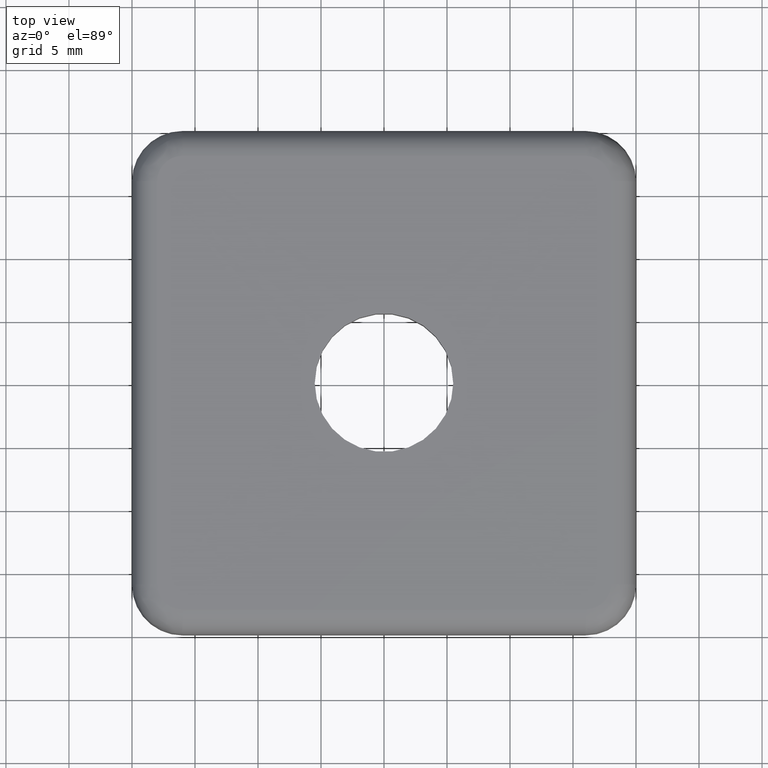
[diagram: clean part render]
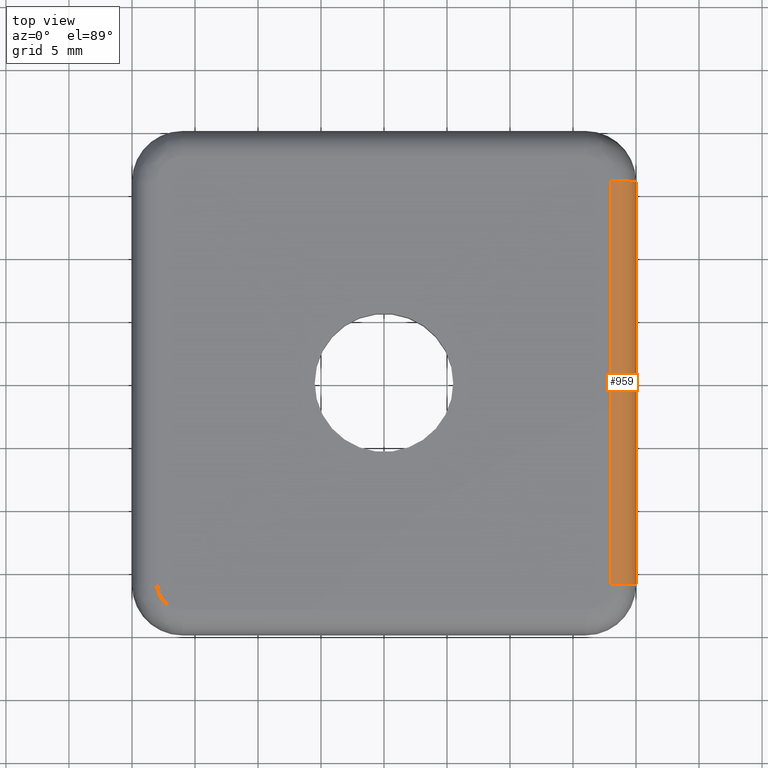
[diagram: same view with one face highlighted and labeled with its STEP entity id]
A machine part, top view. The second image highlights one B-rep face of the part: STEP entity #959.
In plain terms, the highlighted cylindrical surface (edge-blend (fillet) strip) has radius 2 mm, axis along (-0, 1, 0).
Its self-contained STEP definition (entity closure, byte-faithful):
#117=FACE_OUTER_BOUND('',#194,.T.);
#194=EDGE_LOOP('',(#834,#835,#836,#837));
#265=LINE('',#1705,#335);
#266=LINE('',#1706,#336);
#335=VECTOR('',#1387,32.);
#336=VECTOR('',#1388,32.);
#389=CIRCLE('',#1078,2.);
#402=CIRCLE('',#1094,2.);
#473=VERTEX_POINT('',#1636);
#474=VERTEX_POINT('',#1637);
#487=VERTEX_POINT('',#1699);
#488=VERTEX_POINT('',#1700);
#587=EDGE_CURVE('',#473,#474,#389,.T.);
#606=EDGE_CURVE('',#487,#488,#402,.T.);
#609=EDGE_CURVE('',#487,#474,#265,.T.);
#610=EDGE_CURVE('',#473,#488,#266,.T.);
#834=ORIENTED_EDGE('',*,*,#606,.F.);
#835=ORIENTED_EDGE('',*,*,#609,.T.);
#836=ORIENTED_EDGE('',*,*,#587,.F.);
#837=ORIENTED_EDGE('',*,*,#610,.T.);
#902=CYLINDRICAL_SURFACE('',#1097,2.);
#959=ADVANCED_FACE('',(#117),#902,.T.);
#1078=AXIS2_PLACEMENT_3D('',#1638,#1341,#1342);
#1094=AXIS2_PLACEMENT_3D('',#1701,#1379,#1380);
#1097=AXIS2_PLACEMENT_3D('',#1704,#1385,#1386);
#1341=DIRECTION('center_axis',(0.,-1.,0.));
#1342=DIRECTION('ref_axis',(1.,0.,0.));
#1379=DIRECTION('center_axis',(0.,1.,0.));
#1380=DIRECTION('ref_axis',(0.,0.,1.));
#1385=DIRECTION('center_axis',(-5.55111512312578E-17,1.,0.));
#1386=DIRECTION('ref_axis',(0.707106781186548,3.92523114670944E-17,0.707106781186547));
#1387=DIRECTION('',(5.55111512312578E-17,-1.,0.));
#1388=DIRECTION('',(-5.55111512312578E-17,1.,0.));
#1636=CARTESIAN_POINT('',(20.,-16.,2.));
#1637=CARTESIAN_POINT('',(18.,-16.,4.));
#1638=CARTESIAN_POINT('Origin',(18.,-16.,2.));
#1699=CARTESIAN_POINT('',(18.,16.,4.));
#1700=CARTESIAN_POINT('',(20.,16.,2.));
#1701=CARTESIAN_POINT('Origin',(18.,16.,2.));
#1704=CARTESIAN_POINT('Origin',(18.,-10.,2.));
#1705=CARTESIAN_POINT('',(18.,-10.,4.));
#1706=CARTESIAN_POINT('',(20.,-10.,2.));